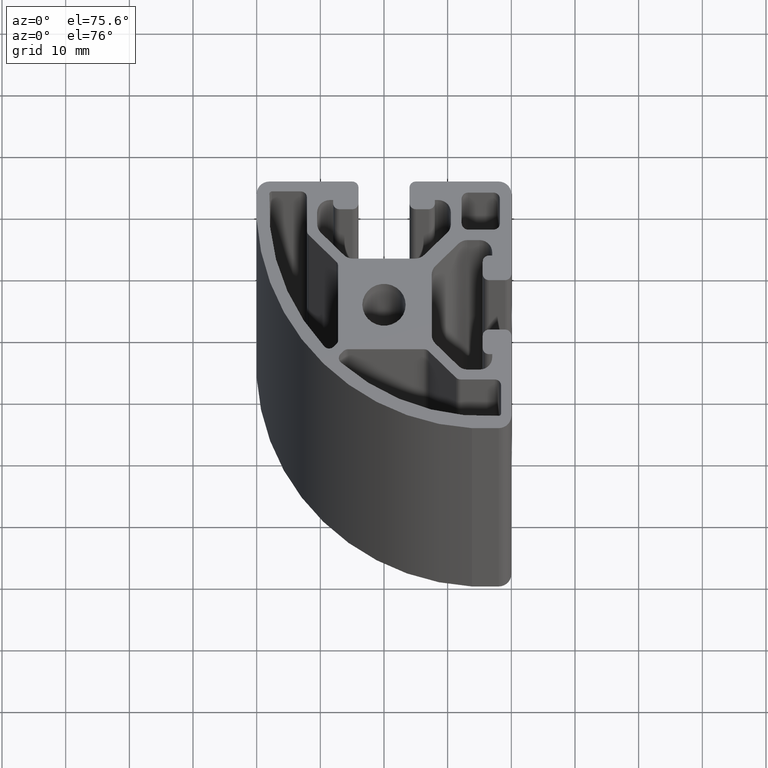
[diagram: clean part render]
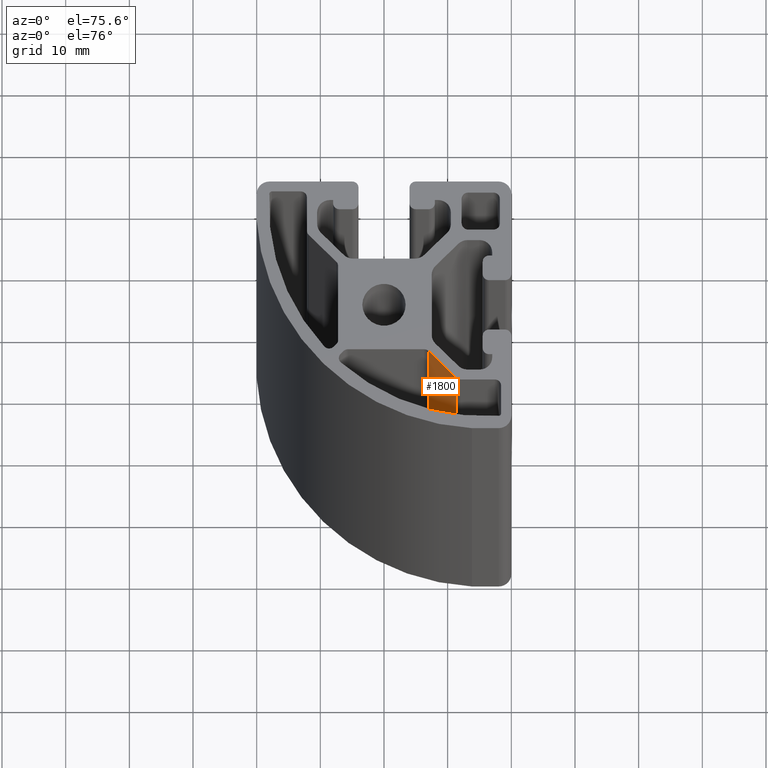
[diagram: same view with one face highlighted and labeled with its STEP entity id]
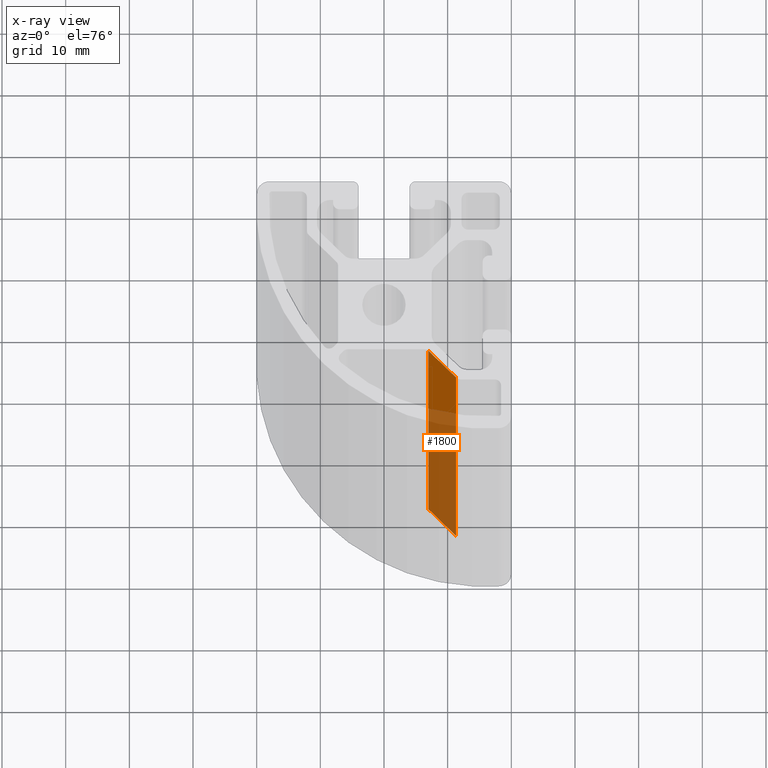
[diagram: x-ray of the same camera — body ghosted, the highlighted face saturated]
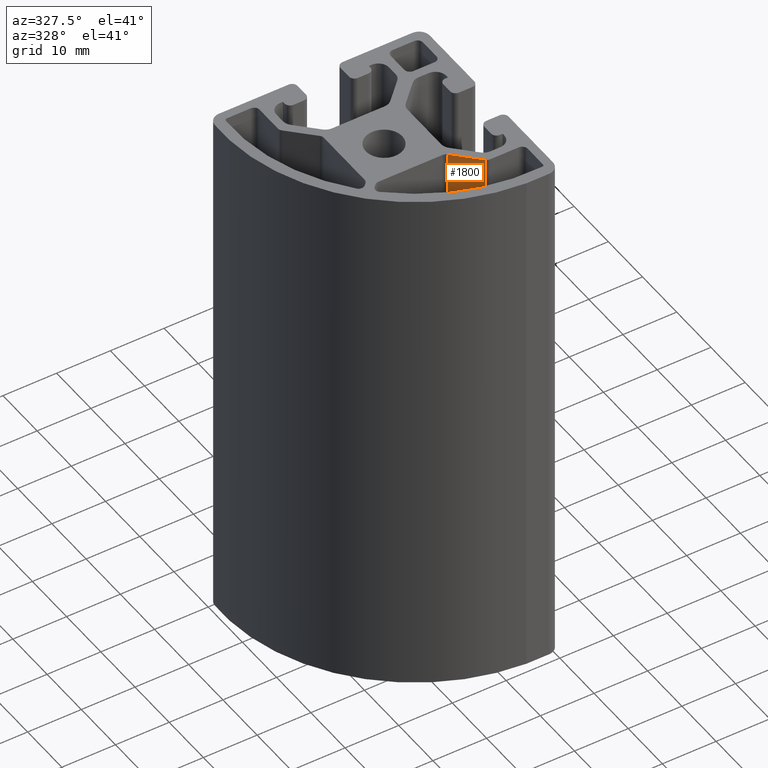
[diagram: same view with one face highlighted and labeled with its STEP entity id]
A machine part, auxiliary view. The second image highlights one B-rep face of the part: STEP entity #1800.
The next image is the same camera in x-ray: the body ghosted, the highlighted face saturated — about 70% of this face is hidden behind the body in this view.
A second angle (auxiliary view) of the same face is appended — the face is thin or edge-on in the first view.
In plain terms, the highlighted planar face has unit normal (0.7071, 0.7071, 0).
Its self-contained STEP definition (entity closure, byte-faithful):
#165=FACE_OUTER_BOUND('',#260,.T.);
#260=EDGE_LOOP('',(#1196,#1197,#1198,#1199));
#364=LINE('',#2654,#548);
#365=LINE('',#2656,#549);
#366=LINE('',#2658,#550);
#367=LINE('',#2659,#551);
#548=VECTOR('',#2090,6.10121933088198);
#549=VECTOR('',#2091,100.);
#550=VECTOR('',#2092,6.10121933088198);
#551=VECTOR('',#2093,100.);
#732=VERTEX_POINT('',#2652);
#733=VERTEX_POINT('',#2653);
#734=VERTEX_POINT('',#2655);
#735=VERTEX_POINT('',#2657);
#918=EDGE_CURVE('',#732,#733,#364,.T.);
#919=EDGE_CURVE('',#734,#732,#365,.T.);
#920=EDGE_CURVE('',#735,#734,#366,.T.);
#921=EDGE_CURVE('',#735,#733,#367,.T.);
#1196=ORIENTED_EDGE('',*,*,#918,.F.);
#1197=ORIENTED_EDGE('',*,*,#919,.F.);
#1198=ORIENTED_EDGE('',*,*,#920,.F.);
#1199=ORIENTED_EDGE('',*,*,#921,.T.);
#1752=PLANE('',#1897);
#1800=ADVANCED_FACE('',(#165),#1752,.F.);
#1897=AXIS2_PLACEMENT_3D('',#2651,#2088,#2089);
#2088=DIRECTION('center_axis',(0.707106781186547,0.707106781186548,0.));
#2089=DIRECTION('ref_axis',(-0.707106781186548,0.707106781186547,0.));
#2090=DIRECTION('',(0.707106781186548,-0.707106781186547,0.));
#2091=DIRECTION('',(0.,0.,1.));
#2092=DIRECTION('',(-0.707106781186548,0.707106781186547,0.));
#2093=DIRECTION('',(0.,0.,1.));
#2651=CARTESIAN_POINT('Origin',(11.312132034356,-11.8071067811866,0.));
#2652=CARTESIAN_POINT('',(6.99791847198287,-7.49289321881346,100.));
#2653=CARTESIAN_POINT('',(11.312132034356,-11.8071067811866,100.));
#2654=CARTESIAN_POINT('',(5.53232233047034,-6.02729707730093,100.));
#2655=CARTESIAN_POINT('',(6.99791847198287,-7.49289321881346,0.));
#2656=CARTESIAN_POINT('',(6.99791847198287,-7.49289321881346,0.));
#2657=CARTESIAN_POINT('',(11.312132034356,-11.8071067811866,0.));
#2658=CARTESIAN_POINT('',(5.53232233047034,-6.02729707730093,0.));
#2659=CARTESIAN_POINT('',(11.312132034356,-11.8071067811866,0.));